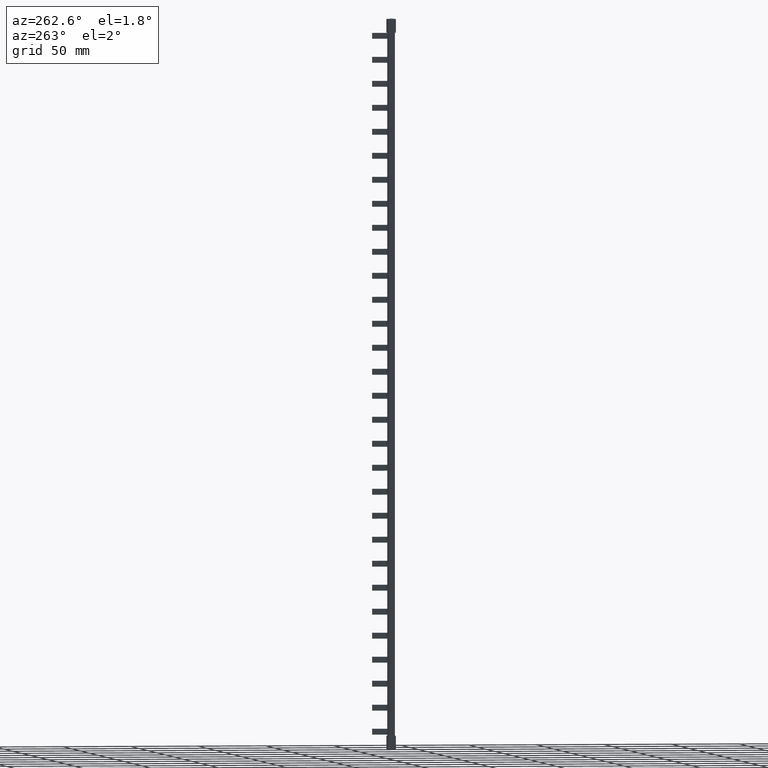
[diagram: clean part render]
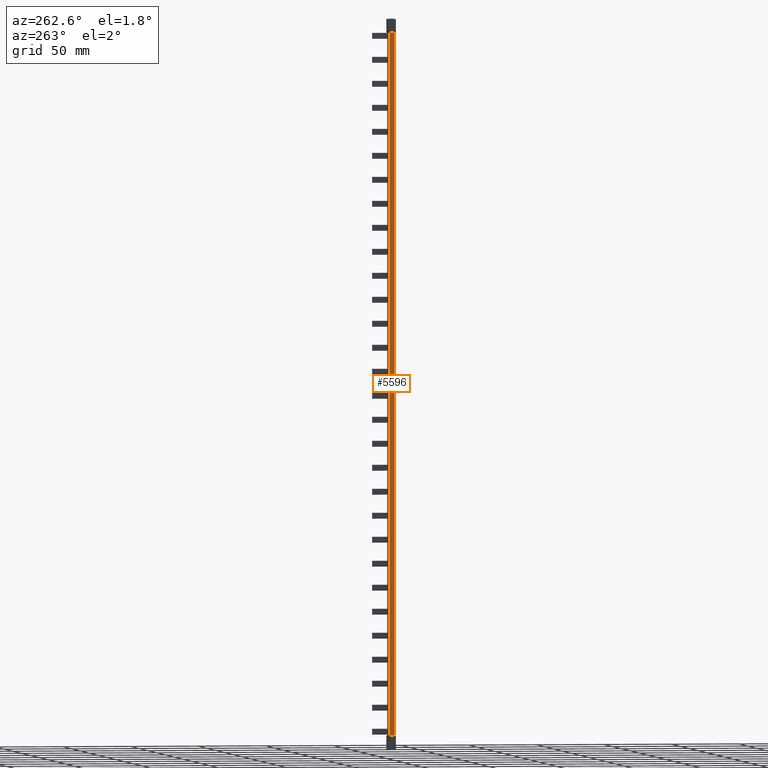
[diagram: same view with one face highlighted and labeled with its STEP entity id]
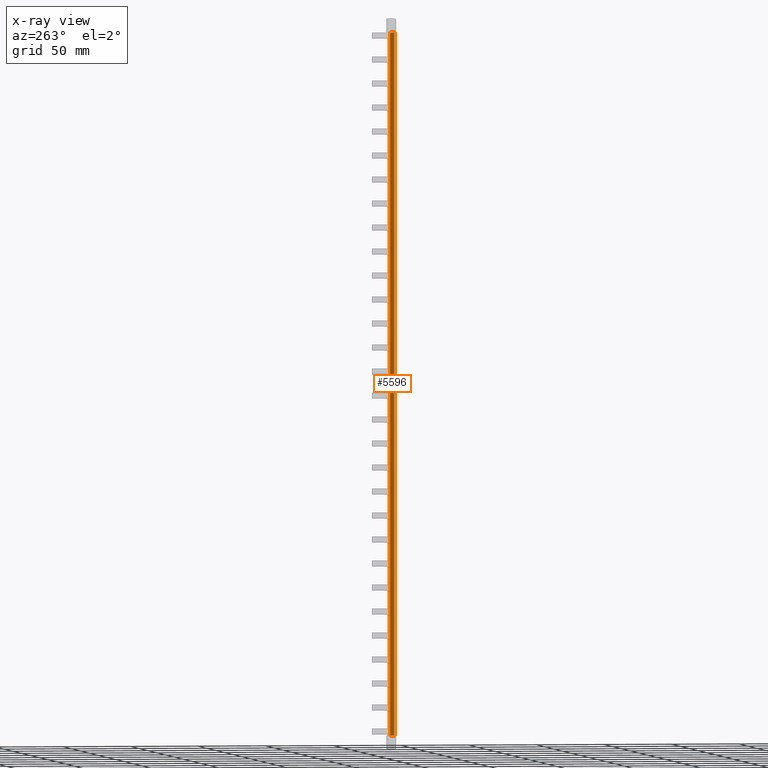
[diagram: x-ray of the same camera — body ghosted, the highlighted face saturated]
A machine part, auxiliary view. The second image highlights one B-rep face of the part: STEP entity #5596.
The next image is the same camera in x-ray: the body ghosted, the highlighted face saturated — about 0% of this face is hidden behind the body in this view.
In plain terms, the highlighted planar face has unit normal (1, 0, -0).
Its self-contained STEP definition (entity closure, byte-faithful):
#609 = ORIENTED_EDGE ( 'NONE', *, *, #17878, .T. ) ;
#679 = ORIENTED_EDGE ( 'NONE', *, *, #17945, .T. ) ;
#680 = ORIENTED_EDGE ( 'NONE', *, *, #17880, .F. ) ;
#701 = ORIENTED_EDGE ( 'NONE', *, *, #22504, .F. ) ;
#4008 = EDGE_LOOP ( 'NONE', ( #701, #679, #609, #680 ) ) ;
#5596 = ADVANCED_FACE ( 'NONE', ( #40867 ), #40852, .F. ) ;
#9591 = VECTOR ( 'NONE', #33730, 1000.000000000000100 ) ;
#9592 = VECTOR ( 'NONE', #33709, 1000.000000000000000 ) ;
#9611 = VECTOR ( 'NONE', #32673, 1000.000000000000000 ) ;
#17878 = EDGE_CURVE ( 'NONE', #23262, #23271, #33706, .T. ) ;
#17880 = EDGE_CURVE ( 'NONE', #34175, #23271, #33735, .T. ) ;
#17945 = EDGE_CURVE ( 'NONE', #28309, #23262, #32741, .T. ) ;
#22504 = EDGE_CURVE ( 'NONE', #28309, #34175, #40745, .T. ) ;
#23262 = VERTEX_POINT ( 'NONE', #42842 ) ;
#23271 = VERTEX_POINT ( 'NONE', #42924 ) ;
#28309 = VERTEX_POINT ( 'NONE', #43297 ) ;
#31686 = AXIS2_PLACEMENT_3D ( 'NONE', #40861, #40871, #40884 ) ;
#32673 = DIRECTION ( 'NONE',  ( -0.0000000000000000000, -0.0000000000000000000, -1.000000000000000000 ) ) ;
#32694 = CARTESIAN_POINT ( 'NONE',  ( -0.5000000000000466300, 3.615511274208504900, 219.0000000000000000 ) ) ;
#32741 = LINE ( 'NONE', #32694, #9611 ) ;
#33700 = CARTESIAN_POINT ( 'NONE',  ( -0.4999997511312341300, 3.963709902452906800, -305.9000000000000300 ) ) ;
#33706 = LINE ( 'NONE', #33700, #9591 ) ;
#33709 = DIRECTION ( 'NONE',  ( -0.0000000000000000000, -0.0000000000000000000, -1.000000000000000000 ) ) ;
#33712 = CARTESIAN_POINT ( 'NONE',  ( -0.4999999999999449300, 0.5000000000000004400, 219.0000000000000000 ) ) ;
#33730 = DIRECTION ( 'NONE',  ( 1.136590875544364300E-008, -0.9999999999999998900, 3.944304527801444700E-031 ) ) ;
#33735 = LINE ( 'NONE', #33712, #9592 ) ;
#34175 = VERTEX_POINT ( 'NONE', #43476 ) ;
#39016 = VECTOR ( 'NONE', #40726, 1000.000000000000000 ) ;
#40707 = CARTESIAN_POINT ( 'NONE',  ( -0.4999999999999271700, -5.682891657265358600E-009, 209.9000000000000100 ) ) ;
#40726 = DIRECTION ( 'NONE',  ( 3.563533965728333600E-014, -1.000000000000000000, -3.939912128522177000E-031 ) ) ;
#40745 = LINE ( 'NONE', #40707, #39016 ) ;
#40852 = PLANE ( 'NONE',  #31686 ) ;
#40861 = CARTESIAN_POINT ( 'NONE',  ( -0.5000000000000559600, 3.615511274208504900, 219.0000000000000000 ) ) ;
#40867 = FACE_OUTER_BOUND ( 'NONE', #4008, .T. ) ;
#40871 = DIRECTION ( 'NONE',  ( 1.000000000000000000, 3.563533965728333600E-014, -0.0000000000000000000 ) ) ;
#40884 = DIRECTION ( 'NONE',  ( -3.563533965728333600E-014, 1.000000000000000000, 0.0000000000000000000 ) ) ;
#42842 = CARTESIAN_POINT ( 'NONE',  ( -0.4999997471736403200, 3.615511274208507600, -305.9000000000000300 ) ) ;
#42924 = CARTESIAN_POINT ( 'NONE',  ( -0.4999997117630233800, 0.4999999943170493900, -305.9000000000000300 ) ) ;
#43297 = CARTESIAN_POINT ( 'NONE',  ( -0.4999997471736403200, 3.615511274208507600, 209.9000000000000100 ) ) ;
#43476 = CARTESIAN_POINT ( 'NONE',  ( -0.4999997117630233800, 0.4999999943170493900, 209.9000000000000100 ) ) ;